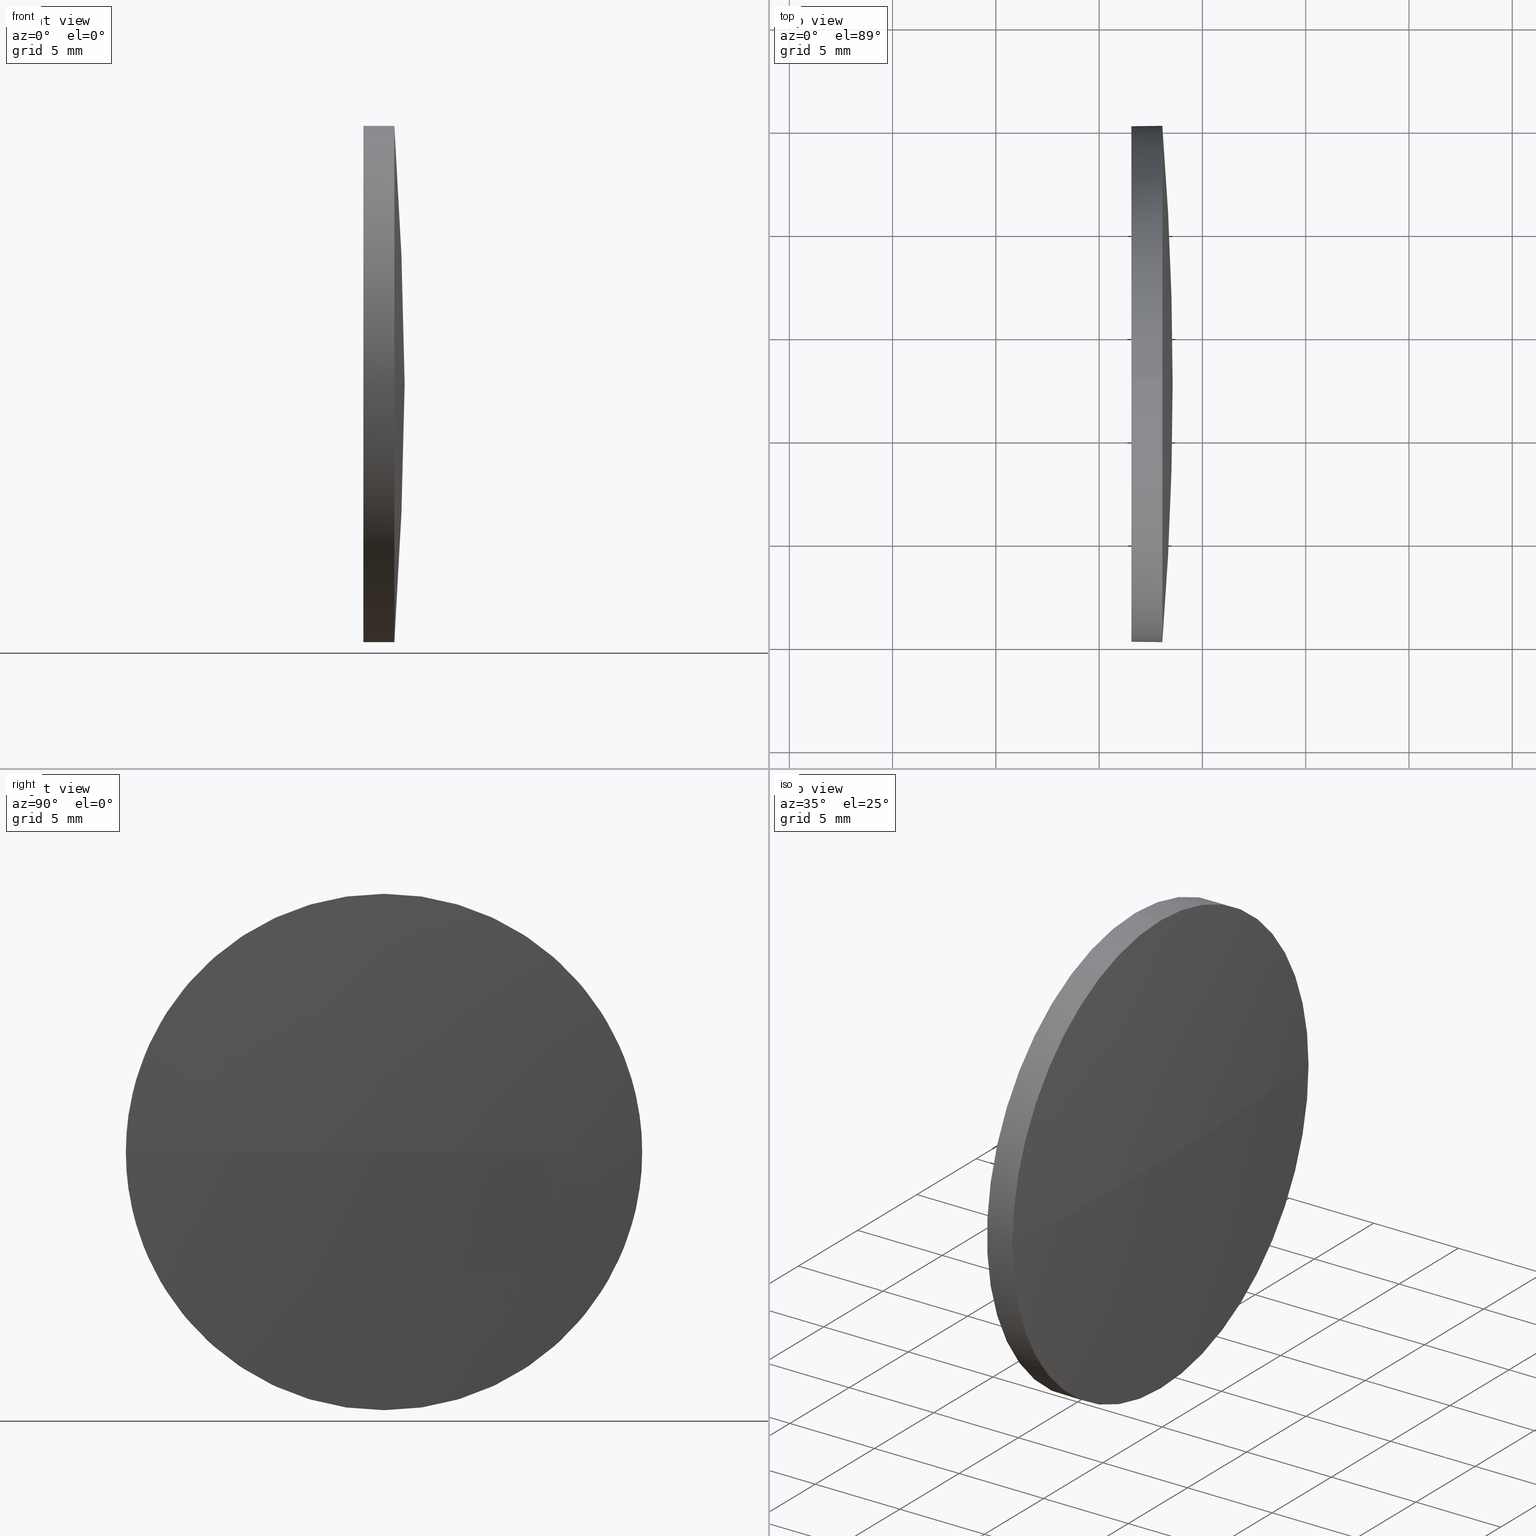
[diagram: canonical four-view strip — front | top / right | iso, engineering-drawing reading convention]
A machine part, canonical four-view strip (front | top / right | iso — engineering-drawing reading convention). The complete STEP part file that produces these views, byte-faithful:
ISO-10303-21;
HEADER;
FILE_DESCRIPTION (( 'STEP AP214' ),
    '1' );
FILE_NAME ('100221.STEP',
    '2019-05-24T02:23:44',
    ( '' ),
    ( '' ),
    'SwSTEP 2.0',
    'SolidWorks 2016',
    '' );
FILE_SCHEMA (( 'AUTOMOTIVE_DESIGN' ));
ENDSEC;

DATA;
#1 = CARTESIAN_POINT ( 'NONE',  ( 58.06002426272561900, 32.62964536423902500, 0.0000000000000000000 ) ) ;
#2 = DIRECTION ( 'NONE',  ( -0.0000000000000000000, 0.0000000000000000000, -1.000000000000000000 ) ) ;
#3 = PRESENTATION_LAYER_ASSIGNMENT (  '', '', ( #186 ) ) ;
#4 = FACE_OUTER_BOUND ( 'NONE', #57, .T. ) ;
#5 = AXIS2_PLACEMENT_3D ( 'NONE', #148, #163, #68 ) ;
#6 =( LENGTH_UNIT ( ) NAMED_UNIT ( * ) SI_UNIT ( .MILLI., .METRE. ) );
#7 = VERTEX_POINT ( 'NONE', #147 ) ;
#8 = MECHANICAL_DESIGN_GEOMETRIC_PRESENTATION_REPRESENTATION (  '', ( #186 ), #26 ) ;
#9 = CARTESIAN_POINT ( 'NONE',  ( 58.56002426272561900, 32.62964536423903200, 0.0000000000000000000 ) ) ;
#10 = ORIENTED_EDGE ( 'NONE', *, *, #110, .T. ) ;
#11 = ORIENTED_EDGE ( 'NONE', *, *, #125, .T. ) ;
#12 = ORIENTED_EDGE ( 'NONE', *, *, #121, .T. ) ;
#13 = ADVANCED_FACE ( 'NONE', ( #20 ), #27, .T. ) ;
#14 = DIRECTION ( 'NONE',  ( -1.000000000000000000, -0.0000000000000000000, -0.0000000000000000000 ) ) ;
#15 = PRESENTATION_STYLE_ASSIGNMENT (( #108 ) ) ;
#16 = PRODUCT ( '100221', '100221', '', ( #171 ) ) ;
#17 = STYLED_ITEM ( 'NONE', ( #78 ), #48 ) ;
#18 = DIRECTION ( 'NONE',  ( -1.000000000000000000, -0.0000000000000000000, -0.0000000000000000000 ) ) ;
#19 = EDGE_LOOP ( 'NONE', ( #112, #10, #185, #39, #161 ) ) ;
#20 = FACE_OUTER_BOUND ( 'NONE', #19, .T. ) ;
#21 = DIRECTION ( 'NONE',  ( -0.0000000000000000000, 0.0000000000000000000, -1.000000000000000000 ) ) ;
#22 = SURFACE_STYLE_FILL_AREA ( #142 ) ;
#23 = CARTESIAN_POINT ( 'NONE',  ( -97.93997573727435200, 32.62964536423902500, 0.0000000000000000000 ) ) ;
#24 = CARTESIAN_POINT ( 'NONE',  ( 58.06002426272561900, 45.12964536423902500, 0.0000000000000000000 ) ) ;
#25 = ORIENTED_EDGE ( 'NONE', *, *, #121, .F. ) ;
#26 =( GEOMETRIC_REPRESENTATION_CONTEXT ( 3 ) GLOBAL_UNCERTAINTY_ASSIGNED_CONTEXT ( ( #28 ) ) GLOBAL_UNIT_ASSIGNED_CONTEXT ( ( #123, #77, #36 ) ) REPRESENTATION_CONTEXT ( 'NONE', 'WORKASPACE' ) );
#27 = CYLINDRICAL_SURFACE ( 'NONE', #132, 12.49999999999999600 ) ;
#28 = UNCERTAINTY_MEASURE_WITH_UNIT (LENGTH_MEASURE( 1.000000000000000100E-005 ), #123, 'distance_accuracy_value', 'NONE');
#29 = CARTESIAN_POINT ( 'NONE',  ( 54.53091668428863400, 32.62964536423902500, 0.0000000000000000000 ) ) ;
#30 = SPHERICAL_SURFACE ( 'NONE', #175, 156.4999999999999700 ) ;
#31 = DIRECTION ( 'NONE',  ( 0.0000000000000000000, 0.0000000000000000000, 1.000000000000000000 ) ) ;
#32 = DIRECTION ( 'NONE',  ( -1.000000000000000000, -0.0000000000000000000, -0.0000000000000000000 ) ) ;
#33 = CARTESIAN_POINT ( 'NONE',  ( -97.93997573727435200, 32.62964536423902500, 0.0000000000000000000 ) ) ;
#34 = MECHANICAL_DESIGN_GEOMETRIC_PRESENTATION_REPRESENTATION (  '', ( #17 ), #47 ) ;
#35 = DIRECTION ( 'NONE',  ( 0.0000000000000000000, 0.0000000000000000000, 1.000000000000000000 ) ) ;
#36 =( NAMED_UNIT ( * ) SI_UNIT ( $, .STERADIAN. ) SOLID_ANGLE_UNIT ( ) );
#37 = AXIS2_PLACEMENT_3D ( 'NONE', #86, #131, #31 ) ;
#38 = FILL_AREA_STYLE_COLOUR ( '', #115 ) ;
#39 = ORIENTED_EDGE ( 'NONE', *, *, #141, .F. ) ;
#40 = LINE ( 'NONE', #89, #173 ) ;
#41 =( GEOMETRIC_REPRESENTATION_CONTEXT ( 3 ) GLOBAL_UNCERTAINTY_ASSIGNED_CONTEXT ( ( #177 ) ) GLOBAL_UNIT_ASSIGNED_CONTEXT ( ( #6, #79, #181 ) ) REPRESENTATION_CONTEXT ( 'NONE', 'WORKASPACE' ) );
#42 = CARTESIAN_POINT ( 'NONE',  ( 58.06002426272561900, 32.62964536423902500, -12.49999999999999600 ) ) ;
#43 = FACE_OUTER_BOUND ( 'NONE', #128, .T. ) ;
#44 = DIRECTION ( 'NONE',  ( 0.0000000000000000000, 1.000000000000000000, 1.224646799147353200E-016 ) ) ;
#45 = EDGE_CURVE ( 'NONE', #98, #7, #172, .T. ) ;
#46 = DIRECTION ( 'NONE',  ( -1.000000000000000000, -0.0000000000000000000, -0.0000000000000000000 ) ) ;
#47 =( GEOMETRIC_REPRESENTATION_CONTEXT ( 3 ) GLOBAL_UNCERTAINTY_ASSIGNED_CONTEXT ( ( #120 ) ) GLOBAL_UNIT_ASSIGNED_CONTEXT ( ( #152, #124, #178 ) ) REPRESENTATION_CONTEXT ( 'NONE', 'WORKASPACE' ) );
#48 = ADVANCED_BREP_SHAPE_REPRESENTATION ( '100221', ( #166, #126 ), #41 ) ;
#49 = ORIENTED_EDGE ( 'NONE', *, *, #113, .T. ) ;
#50 = SURFACE_STYLE_FILL_AREA ( #61 ) ;
#51 = COLOUR_RGB ( '',1.000000000000000000, 1.000000000000000000, 1.000000000000000000 ) ;
#52 = DIRECTION ( 'NONE',  ( 0.0000000000000000000, 0.0000000000000000000, 1.000000000000000000 ) ) ;
#53 = DIRECTION ( 'NONE',  ( -1.000000000000000000, -0.0000000000000000000, -0.0000000000000000000 ) ) ;
#54 = VECTOR ( 'NONE', #53, 1000.000000000000000 ) ;
#55 = DIRECTION ( 'NONE',  ( 0.0000000000000000000, 1.224646799147353200E-016, -1.000000000000000000 ) ) ;
#56 = CARTESIAN_POINT ( 'NONE',  ( -97.93997573727435200, 32.62964536423902500, 0.0000000000000000000 ) ) ;
#57 = EDGE_LOOP ( 'NONE', ( #25, #114, #106, #122 ) ) ;
#58 = DIRECTION ( 'NONE',  ( -1.000000000000000000, -0.0000000000000000000, -0.0000000000000000000 ) ) ;
#59 = EDGE_CURVE ( 'NONE', #119, #168, #162, .T. ) ;
#60 = ORIENTED_EDGE ( 'NONE', *, *, #141, .T. ) ;
#61 = FILL_AREA_STYLE ('',( #38 ) ) ;
#62 = ADVANCED_FACE ( 'NONE', ( #109 ), #133, .F. ) ;
#63 = VERTEX_POINT ( 'NONE', #129 ) ;
#64 = ADVANCED_FACE ( 'NONE', ( #144 ), #80, .T. ) ;
#65 = PRODUCT_RELATED_PRODUCT_CATEGORY ( 'part', '', ( #16 ) ) ;
#66 = EDGE_CURVE ( 'NONE', #84, #63, #100, .T. ) ;
#67 = DIRECTION ( 'NONE',  ( 0.0000000000000000000, 0.0000000000000000000, 1.000000000000000000 ) ) ;
#68 = DIRECTION ( 'NONE',  ( 0.0000000000000000000, 0.0000000000000000000, -1.000000000000000000 ) ) ;
#69 = FILL_AREA_STYLE_COLOUR ( '', #51 ) ;
#70 = EDGE_CURVE ( 'NONE', #168, #98, #174, .T. ) ;
#71 = DIRECTION ( 'NONE',  ( 0.0000000000000000000, 0.0000000000000000000, 1.000000000000000000 ) ) ;
#72 = PRODUCT_DEFINITION_SHAPE ( 'NONE', 'NONE',  #96 ) ;
#73 = ORIENTED_EDGE ( 'NONE', *, *, #125, .F. ) ;
#74 = DIRECTION ( 'NONE',  ( 0.0000000000000000000, 0.0000000000000000000, 1.000000000000000000 ) ) ;
#75 = APPLICATION_PROTOCOL_DEFINITION ( 'draft international standard', 'automotive_design', 1998, #143 ) ;
#76 = CARTESIAN_POINT ( 'NONE',  ( 0.0000000000000000000, 0.0000000000000000000, 0.0000000000000000000 ) ) ;
#77 =( NAMED_UNIT ( * ) PLANE_ANGLE_UNIT ( ) SI_UNIT ( $, .RADIAN. ) );
#78 = PRESENTATION_STYLE_ASSIGNMENT (( #154 ) ) ;
#79 =( NAMED_UNIT ( * ) PLANE_ANGLE_UNIT ( ) SI_UNIT ( $, .RADIAN. ) );
#80 = CYLINDRICAL_SURFACE ( 'NONE', #145, 12.49999999999999600 ) ;
#81 = AXIS2_PLACEMENT_3D ( 'NONE', #104, #102, #52 ) ;
#82 = CIRCLE ( 'NONE', #149, 12.49999999999999600 ) ;
#83 = ADVANCED_FACE ( 'NONE', ( #43 ), #30, .T. ) ;
#84 = VERTEX_POINT ( 'NONE', #135 ) ;
#85 = CARTESIAN_POINT ( 'NONE',  ( 54.53091668428863400, 32.62964536423902500, 0.0000000000000000000 ) ) ;
#86 = CARTESIAN_POINT ( 'NONE',  ( 58.06002426272561900, 32.62964536423902500, 0.0000000000000000000 ) ) ;
#87 = EDGE_CURVE ( 'NONE', #157, #7, #97, .T. ) ;
#88 = DIRECTION ( 'NONE',  ( 1.000000000000000000, 0.0000000000000000000, 0.0000000000000000000 ) ) ;
#89 = CARTESIAN_POINT ( 'NONE',  ( 54.53091668428863400, 32.62964536423902500, 12.49999999999999600 ) ) ;
#90 = AXIS2_PLACEMENT_3D ( 'NONE', #164, #176, #88 ) ;
#91 = LINE ( 'NONE', #150, #54 ) ;
#92 = SURFACE_SIDE_STYLE ('',( #22 ) ) ;
#93 = DIRECTION ( 'NONE',  ( 0.0000000000000000000, 0.0000000000000000000, 1.000000000000000000 ) ) ;
#94 = ORIENTED_EDGE ( 'NONE', *, *, #110, .F. ) ;
#95 = CLOSED_SHELL ( 'NONE', ( #13, #153, #83, #64, #62 ) ) ;
#96 = PRODUCT_DEFINITION ( 'δ֪', '', #130, #105 ) ;
#97 = CIRCLE ( 'NONE', #155, 156.4999999999999700 ) ;
#98 = VERTEX_POINT ( 'NONE', #42 ) ;
#99 = EDGE_LOOP ( 'NONE', ( #49, #156 ) ) ;
#100 = CIRCLE ( 'NONE', #81, 12.49999999999999600 ) ;
#101 = DIRECTION ( 'NONE',  ( 0.0000000000000000000, 0.0000000000000000000, 1.000000000000000000 ) ) ;
#102 = DIRECTION ( 'NONE',  ( -1.000000000000000000, -0.0000000000000000000, -0.0000000000000000000 ) ) ;
#103 = SHAPE_DEFINITION_REPRESENTATION ( #72, #48 ) ;
#104 = CARTESIAN_POINT ( 'NONE',  ( 56.56002426272561900, 32.62964536423902500, 0.0000000000000000000 ) ) ;
#105 = PRODUCT_DEFINITION_CONTEXT ( 'detailed design', #143, 'design' ) ;
#106 = ORIENTED_EDGE ( 'NONE', *, *, #45, .F. ) ;
#107 = APPLICATION_CONTEXT ( 'automotive_design' ) ;
#108 = SURFACE_STYLE_USAGE ( .BOTH. , #92 ) ;
#109 = FACE_OUTER_BOUND ( 'NONE', #99, .T. ) ;
#110 = EDGE_CURVE ( 'NONE', #98, #84, #91, .T. ) ;
#111 = EDGE_LOOP ( 'NONE', ( #94, #179, #11, #60, #158 ) ) ;
#112 = ORIENTED_EDGE ( 'NONE', *, *, #70, .T. ) ;
#113 = EDGE_CURVE ( 'NONE', #63, #84, #137, .T. ) ;
#114 = ORIENTED_EDGE ( 'NONE', *, *, #87, .T. ) ;
#115 = COLOUR_RGB ( '',1.000000000000000000, 1.000000000000000000, 1.000000000000000000 ) ;
#116 = CARTESIAN_POINT ( 'NONE',  ( 58.06002426272561900, 32.62964536423902500, 0.0000000000000000000 ) ) ;
#117 = DIRECTION ( 'NONE',  ( 0.0000000000000000000, 0.0000000000000000000, 1.000000000000000000 ) ) ;
#118 = DIRECTION ( 'NONE',  ( 0.0000000000000000000, 1.000000000000000000, 0.0000000000000000000 ) ) ;
#119 = VERTEX_POINT ( 'NONE', #134 ) ;
#120 = UNCERTAINTY_MEASURE_WITH_UNIT (LENGTH_MEASURE( 1.000000000000000100E-005 ), #152, 'distance_accuracy_value', 'NONE');
#121 = EDGE_CURVE ( 'NONE', #157, #168, #169, .T. ) ;
#122 = ORIENTED_EDGE ( 'NONE', *, *, #70, .F. ) ;
#123 =( LENGTH_UNIT ( ) NAMED_UNIT ( * ) SI_UNIT ( .MILLI., .METRE. ) );
#124 =( NAMED_UNIT ( * ) PLANE_ANGLE_UNIT ( ) SI_UNIT ( $, .RADIAN. ) );
#125 = EDGE_CURVE ( 'NONE', #7, #119, #82, .T. ) ;
#126 = AXIS2_PLACEMENT_3D ( 'NONE', #76, #35, #140 ) ;
#127 = SPHERICAL_SURFACE ( 'NONE', #184, 156.4999999999999700 ) ;
#128 = EDGE_LOOP ( 'NONE', ( #146, #12, #165, #73 ) ) ;
#129 = CARTESIAN_POINT ( 'NONE',  ( 56.56002426272561900, 32.62964536423902500, 12.49999999999999600 ) ) ;
#130 = PRODUCT_DEFINITION_FORMATION_WITH_SPECIFIED_SOURCE ( '�κ�', '', #16, .NOT_KNOWN. ) ;
#131 = DIRECTION ( 'NONE',  ( -1.000000000000000000, -0.0000000000000000000, -0.0000000000000000000 ) ) ;
#132 = AXIS2_PLACEMENT_3D ( 'NONE', #85, #14, #67 ) ;
#133 = PLANE ( 'NONE',  #5 ) ;
#134 = CARTESIAN_POINT ( 'NONE',  ( 58.06002426272561900, 32.62964536423902500, 12.49999999999999600 ) ) ;
#135 = CARTESIAN_POINT ( 'NONE',  ( 56.56002426272561900, 32.62964536423902500, -12.49999999999999600 ) ) ;
#136 = AXIS2_PLACEMENT_3D ( 'NONE', #1, #159, #101 ) ;
#137 = CIRCLE ( 'NONE', #180, 12.49999999999999600 ) ;
#138 = CARTESIAN_POINT ( 'NONE',  ( 56.56002426272561900, 32.62964536423902500, 0.0000000000000000000 ) ) ;
#139 = APPLICATION_PROTOCOL_DEFINITION ( 'draft international standard', 'automotive_design', 1998, #107 ) ;
#140 = DIRECTION ( 'NONE',  ( 1.000000000000000000, 0.0000000000000000000, 0.0000000000000000000 ) ) ;
#141 = EDGE_CURVE ( 'NONE', #119, #63, #40, .T. ) ;
#142 = FILL_AREA_STYLE ('',( #69 ) ) ;
#143 = APPLICATION_CONTEXT ( 'automotive_design' ) ;
#144 = FACE_OUTER_BOUND ( 'NONE', #111, .T. ) ;
#145 = AXIS2_PLACEMENT_3D ( 'NONE', #29, #32, #74 ) ;
#146 = ORIENTED_EDGE ( 'NONE', *, *, #87, .F. ) ;
#147 = CARTESIAN_POINT ( 'NONE',  ( 58.06002426272561900, 20.12964536423902500, -1.530808498934191700E-015 ) ) ;
#148 = CARTESIAN_POINT ( 'NONE',  ( 56.56002426272561900, 32.62964536423902500, 0.0000000000000000000 ) ) ;
#149 = AXIS2_PLACEMENT_3D ( 'NONE', #170, #46, #93 ) ;
#150 = CARTESIAN_POINT ( 'NONE',  ( 54.53091668428863400, 32.62964536423902500, -12.49999999999999600 ) ) ;
#151 = AXIS2_PLACEMENT_3D ( 'NONE', #116, #18, #117 ) ;
#152 =( LENGTH_UNIT ( ) NAMED_UNIT ( * ) SI_UNIT ( .MILLI., .METRE. ) );
#153 = ADVANCED_FACE ( 'NONE', ( #4 ), #127, .T. ) ;
#154 = SURFACE_STYLE_USAGE ( .BOTH. , #182 ) ;
#155 = AXIS2_PLACEMENT_3D ( 'NONE', #33, #55, #44 ) ;
#156 = ORIENTED_EDGE ( 'NONE', *, *, #66, .T. ) ;
#157 = VERTEX_POINT ( 'NONE', #9 ) ;
#158 = ORIENTED_EDGE ( 'NONE', *, *, #66, .F. ) ;
#159 = DIRECTION ( 'NONE',  ( -1.000000000000000000, -0.0000000000000000000, -0.0000000000000000000 ) ) ;
#160 = PRESENTATION_LAYER_ASSIGNMENT (  '', '', ( #17 ) ) ;
#161 = ORIENTED_EDGE ( 'NONE', *, *, #59, .T. ) ;
#162 = CIRCLE ( 'NONE', #136, 12.49999999999999600 ) ;
#163 = DIRECTION ( 'NONE',  ( 1.000000000000000000, 0.0000000000000000000, 0.0000000000000000000 ) ) ;
#164 = CARTESIAN_POINT ( 'NONE',  ( -97.93997573727435200, 32.62964536423902500, 0.0000000000000000000 ) ) ;
#165 = ORIENTED_EDGE ( 'NONE', *, *, #59, .F. ) ;
#166 = MANIFOLD_SOLID_BREP ( '��ת1', #95 ) ;
#167 = DIRECTION ( 'NONE',  ( -1.000000000000000000, -0.0000000000000000000, -0.0000000000000000000 ) ) ;
#168 = VERTEX_POINT ( 'NONE', #24 ) ;
#169 = CIRCLE ( 'NONE', #90, 156.4999999999999700 ) ;
#170 = CARTESIAN_POINT ( 'NONE',  ( 58.06002426272561900, 32.62964536423902500, 0.0000000000000000000 ) ) ;
#171 = PRODUCT_CONTEXT ( 'NONE', #107, 'mechanical' ) ;
#172 = CIRCLE ( 'NONE', #37, 12.49999999999999600 ) ;
#173 = VECTOR ( 'NONE', #167, 1000.000000000000000 ) ;
#174 = CIRCLE ( 'NONE', #151, 12.49999999999999600 ) ;
#175 = AXIS2_PLACEMENT_3D ( 'NONE', #56, #2, #118 ) ;
#176 = DIRECTION ( 'NONE',  ( -0.0000000000000000000, 0.0000000000000000000, 1.000000000000000000 ) ) ;
#177 = UNCERTAINTY_MEASURE_WITH_UNIT (LENGTH_MEASURE( 1.000000000000000100E-005 ), #6, 'distance_accuracy_value', 'NONE');
#178 =( NAMED_UNIT ( * ) SI_UNIT ( $, .STERADIAN. ) SOLID_ANGLE_UNIT ( ) );
#179 = ORIENTED_EDGE ( 'NONE', *, *, #45, .T. ) ;
#180 = AXIS2_PLACEMENT_3D ( 'NONE', #138, #58, #71 ) ;
#181 =( NAMED_UNIT ( * ) SI_UNIT ( $, .STERADIAN. ) SOLID_ANGLE_UNIT ( ) );
#182 = SURFACE_SIDE_STYLE ('',( #50 ) ) ;
#183 = DIRECTION ( 'NONE',  ( 0.0000000000000000000, 1.000000000000000000, 0.0000000000000000000 ) ) ;
#184 = AXIS2_PLACEMENT_3D ( 'NONE', #23, #21, #183 ) ;
#185 = ORIENTED_EDGE ( 'NONE', *, *, #113, .F. ) ;
#186 = STYLED_ITEM ( 'NONE', ( #15 ), #166 ) ;
ENDSEC;
END-ISO-10303-21;
